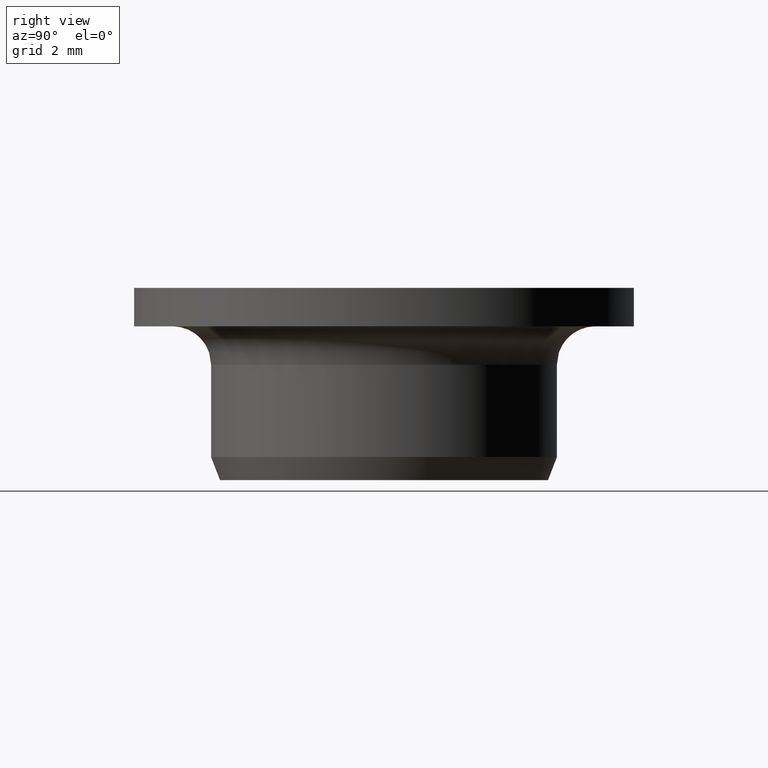
[diagram: clean part render]
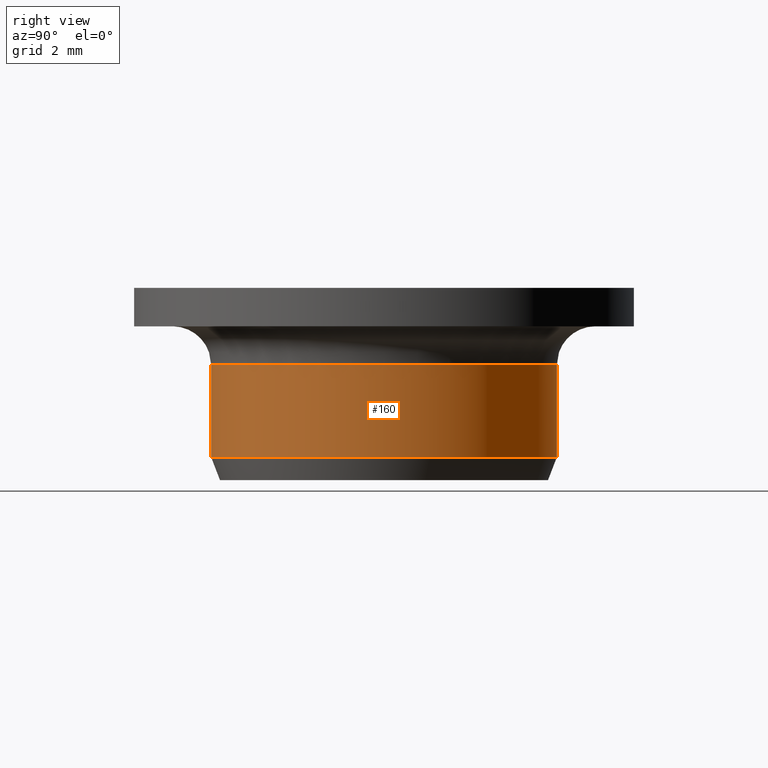
[diagram: same view with one face highlighted and labeled with its STEP entity id]
A machine part, right view. The second image highlights one B-rep face of the part: STEP entity #160.
In plain terms, the highlighted cylindrical surface (partial cylindrical patch) has radius 4.5 mm, axis along (-0, 0, -1).
Its self-contained STEP definition (entity closure, byte-faithful):
#160=ADVANCED_FACE('',(#181),#182,.T.);
#181=FACE_OUTER_BOUND('',#206,.T.);
#182=CYLINDRICAL_SURFACE('',#207,0.0045);
#206=EDGE_LOOP('',(#271,#272,#273,#274));
#207=AXIS2_PLACEMENT_3D('',#275,#276,#277);
#271=ORIENTED_EDGE('',*,*,#330,.T.);
#272=ORIENTED_EDGE('',*,*,#336,.T.);
#273=ORIENTED_EDGE('',*,*,#337,.F.);
#274=ORIENTED_EDGE('',*,*,#317,.F.);
#275=CARTESIAN_POINT('',(0.0,0.0,0.0));
#276=DIRECTION('',(0.0,-6.12323399573677E-017,-1.0));
#277=DIRECTION('',(0.0,1.0,-6.12323399573677E-017));
#317=EDGE_CURVE('',#351,#353,#354,.T.);
#330=EDGE_CURVE('',#351,#374,#376,.T.);
#336=EDGE_CURVE('',#374,#384,#385,.T.);
#337=EDGE_CURVE('',#353,#384,#386,.T.);
#351=VERTEX_POINT('',#417);
#353=VERTEX_POINT('',#428);
#354=LINE('',#429,#430);
#374=VERTEX_POINT('',#474);
#376=CIRCLE('',#485,0.0045);
#384=VERTEX_POINT('',#496);
#385=LINE('',#497,#498);
#386=CIRCLE('',#499,0.0045);
#417=CARTESIAN_POINT('',(0.00448634897185272,-0.000350246916840152,0.003));
#428=CARTESIAN_POINT('',(0.00448634897185272,-0.000350246916840153,0.0006));
#429=CARTESIAN_POINT('',(0.00448634897185272,-0.000350246916840153,4.76248053914574E-020));
#430=VECTOR('',#513,1.0);
#474=CARTESIAN_POINT('',(0.00448634897185272,0.000350246916840154,0.003));
#485=AXIS2_PLACEMENT_3D('',#531,#532,#533);
#496=CARTESIAN_POINT('',(0.00448634897185272,0.000350246916840154,0.0006));
#497=CARTESIAN_POINT('',(0.00448634897185272,0.000350246916840154,-4.92279088476483E-020));
#498=VECTOR('',#543,1.0);
#499=AXIS2_PLACEMENT_3D('',#544,#545,#546);
#513=DIRECTION('',(0.0,-6.12323399573677E-017,-1.0));
#531=CARTESIAN_POINT('',(0.0,0.0,0.003));
#532=DIRECTION('',(0.0,-6.12323399573677E-017,-1.0));
#533=DIRECTION('',(0.0,1.0,-6.12323399573677E-017));
#543=DIRECTION('',(0.0,-6.12323399573677E-017,-1.0));
#544=CARTESIAN_POINT('',(0.0,0.0,0.0006));
#545=DIRECTION('',(0.0,-6.12323399573677E-017,-1.0));
#546=DIRECTION('',(0.0,1.0,-6.12323399573677E-017));